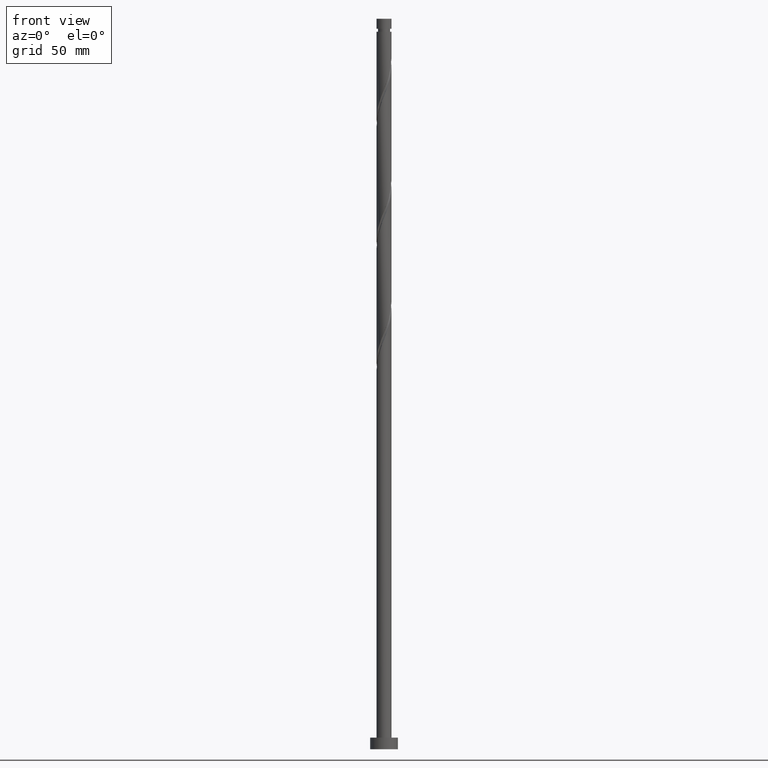
[diagram: clean part render]
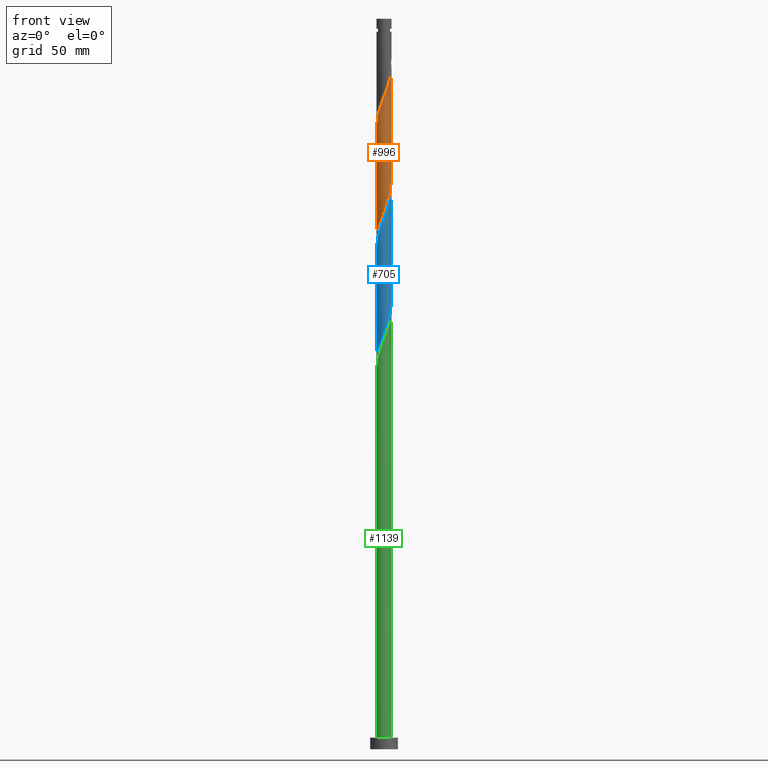
[diagram: same view with three faces highlighted in distinct colors, each labeled with its STEP entity id]
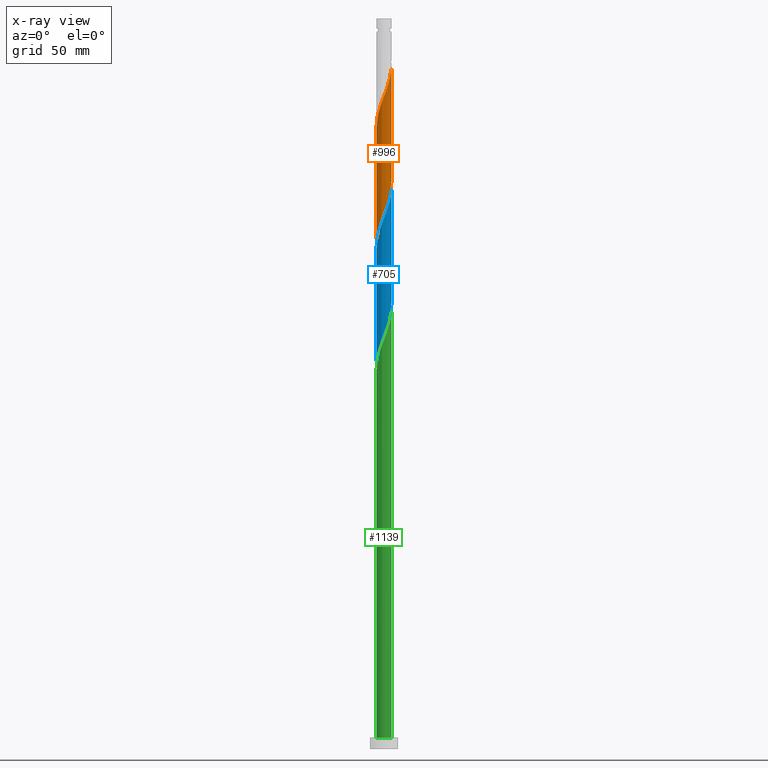
[diagram: x-ray of the same camera — body ghosted, the three highlighted faces saturated]
A machine part, front view with three faces highlighted in distinct colors.
The next image is the same camera in x-ray (body ghosted, the three faces saturated) — at least one of them is partly hidden behind the body in this view.
Their STEP definitions:

[orange] entity #996 — the highlighted cylindrical surface (edge-blend (fillet) strip) has radius 3.25 mm, axis along (-0, -0, -1).
#10 = EDGE_CURVE ( 'NONE', #267, #1795, #1080, .T. ) ;
#96 = CARTESIAN_POINT ( 'NONE',  ( -3.112129696193390860, -1.005605147701160273, 270.9820365143565368 ) ) ;
#104 = CARTESIAN_POINT ( 'NONE',  ( -2.588975079037776794, -1.964613967201029432, 273.7945365143565368 ) ) ;
#111 = CARTESIAN_POINT ( 'NONE',  ( -2.726594891042975366, -1.806176419719337067, 224.1070365143564800 ) ) ;
#122 = AXIS2_PLACEMENT_3D ( 'NONE', #591, #1572, #1292 ) ;
#125 = CARTESIAN_POINT ( 'NONE',  ( 2.367616247584412914, -2.256321400684336176, 239.1070365143564800 ) ) ;
#158 = CARTESIAN_POINT ( 'NONE',  ( 1.480171891976476362, -2.893370209669474669, 236.2945365143565368 ) ) ;
#193 = CARTESIAN_POINT ( 'NONE',  ( 3.250000000000000000, -3.082172232195127882E-15, 245.4690535922625543 ) ) ;
#267 = VERTEX_POINT ( 'NONE', #779 ) ;
#268 = CARTESIAN_POINT ( 'NONE',  ( 3.112129696193387751, -1.005605147701160051, 242.8570365143565652 ) ) ;
#288 = CARTESIAN_POINT ( 'NONE',  ( 2.961231803342259994, -1.339255840709440148, 241.9195365143564516 ) ) ;
#380 = CARTESIAN_POINT ( 'NONE',  ( -1.480171891976478582, -2.893370209669476889, 277.5445365143565937 ) ) ;
#387 = CARTESIAN_POINT ( 'NONE',  ( 1.672906533717721134, -2.810333910491136233, 285.9820365143565937 ) ) ;
#408 = CARTESIAN_POINT ( 'NONE',  ( 3.250000000000005329, -0.03910691579076755464, 294.5196567482252590 ) ) ;
#417 = CARTESIAN_POINT ( 'NONE',  ( -2.491458145863655105, -2.086896333651874436, 225.0445365143564800 ) ) ;
#422 = CARTESIAN_POINT ( 'NONE',  ( 3.060145528295977524, -1.154167364233618542, 291.6070365143566505 ) ) ;
#428 = CARTESIAN_POINT ( 'NONE',  ( 1.806176419719336845, -2.726594891042975366, 237.2320365143565368 ) ) ;
#447 = FACE_OUTER_BOUND ( 'NONE', #1575, .T. ) ;
#547 = CARTESIAN_POINT ( 'NONE',  ( 2.256321400684337952, -2.367616247584416467, 287.8570365143566505 ) ) ;
#566 = CARTESIAN_POINT ( 'NONE',  ( -1.806176419719339732, -2.726594891042978475, 276.6070365143564231 ) ) ;
#576 = CARTESIAN_POINT ( 'NONE',  ( -1.154167364233618542, -3.060145528295977524, 278.4820365143565937 ) ) ;
#581 = CARTESIAN_POINT ( 'NONE',  ( -1.964613967201027434, -2.588975079037771909, 226.9195365143564800 ) ) ;
#587 = ORIENTED_EDGE ( 'NONE', *, *, #10, .F. ) ;
#588 = CARTESIAN_POINT ( 'NONE',  ( -2.256321400684336176, -2.367616247584412914, 225.9820365143565084 ) ) ;
#591 = CARTESIAN_POINT ( 'NONE',  ( 0.000000000000000000, 0.000000000000000000, 315.0000000000000000 ) ) ;
#601 = CARTESIAN_POINT ( 'NONE',  ( -0.6467418341193061915, -3.185000000000000053, 230.6695365143564800 ) ) ;
#607 = EDGE_CURVE ( 'NONE', #670, #846, #1813, .T. ) ;
#670 = VERTEX_POINT ( 'NONE', #193 ) ;
#677 = CARTESIAN_POINT ( 'NONE',  ( -2.810333910491136233, -1.672906533717721134, 272.8570365143564800 ) ) ;
#688 = CARTESIAN_POINT ( 'NONE',  ( 1.005605147701160051, -3.112129696193390860, 284.1070365143565368 ) ) ;
#693 = EDGE_CURVE ( 'NONE', #267, #846, #1370, .T. ) ;
#697 = CARTESIAN_POINT ( 'NONE',  ( -0.07820250859228403129, -3.249058997255960257, 281.2945365143564231 ) ) ;
#706 = CARTESIAN_POINT ( 'NONE',  ( -3.250000000000006217, -0.3266372899592375201, 269.2082905154140349 ) ) ;
#724 = CARTESIAN_POINT ( 'NONE',  ( -1.339255840709440148, -2.961231803342259994, 228.7945365143565084 ) ) ;
#732 = CARTESIAN_POINT ( 'NONE',  ( -2.893370209669474669, -1.480171891976476584, 223.1695365143564800 ) ) ;
#773 = ORIENTED_EDGE ( 'NONE', *, *, #693, .T. ) ;
#779 = CARTESIAN_POINT ( 'NONE',  ( -3.250000000000004441, -1.425411371305729052E-15, 268.3700194364503204 ) ) ;
#823 = CARTESIAN_POINT ( 'NONE',  ( -0.4442835377220198945, -3.240247690705303274, 280.3570365143564800 ) ) ;
#846 = VERTEX_POINT ( 'NONE', #1566 ) ;
#855 = CYLINDRICAL_SURFACE ( 'NONE', #122, 3.250000000000000444 ) ;
#858 = CARTESIAN_POINT ( 'NONE',  ( 0.07820250859228279616, -3.249058997255955372, 232.5445365143565084 ) ) ;
#875 = CARTESIAN_POINT ( 'NONE',  ( 1.154167364233615878, -3.060145528295974415, 235.3570365143564800 ) ) ;
#881 = CARTESIAN_POINT ( 'NONE',  ( 3.250000000000000444, -0.3266372899592472900, 244.6307825132989535 ) ) ;
#891 = CARTESIAN_POINT ( 'NONE',  ( 3.250000000000000000, -3.082172232195128276E-15, 245.4690535922625543 ) ) ;
#931 = CARTESIAN_POINT ( 'NONE',  ( -3.250000000000000444, 0.000000000000000000, 315.0000000000000000 ) ) ;
#974 = CARTESIAN_POINT ( 'NONE',  ( 3.150196609500639955, -0.7992254509778191629, 292.5445365143564800 ) ) ;
#978 = DIRECTION ( 'NONE',  ( -0.000000000000000000, -0.000000000000000000, -1.000000000000000000 ) ) ;
#991 = ORIENTED_EDGE ( 'NONE', *, *, #1794, .F. ) ;
#996 = ADVANCED_FACE ( 'NONE', ( #447 ), #855, .T. ) ;
#998 = CARTESIAN_POINT ( 'NONE',  ( -1.005605147701159829, -3.112129696193387751, 229.7320365143564800 ) ) ;
#1000 = CARTESIAN_POINT ( 'NONE',  ( 3.240247690705302830, -0.4442835377220201720, 293.4820365143564800 ) ) ;
#1015 = CARTESIAN_POINT ( 'NONE',  ( -0.2878785205374524980, -3.257870303806612799, 231.6070365143564800 ) ) ;
#1080 =( BOUNDED_CURVE ( )  B_SPLINE_CURVE ( 2, ( #1257, #706, #1111, #96, #1418, #677, #104, #1297, #1885, #566, #380, #576, #1151, #823, #697, #1552, #1569, #688, #1264, #387, #1856, #547, #1121, #1708, #1733, #422, #974, #1000, #1279, #408, #1868 ),
 .UNSPECIFIED., .F., .T. ) 
 B_SPLINE_CURVE_WITH_KNOTS ( ( 3, 2, 2, 2, 2, 2, 2, 2, 2, 2, 2, 2, 2, 2, 2, 3 ),
 ( 0.5545303401299218615, 0.5625000000000000000, 0.5714285714285713969, 0.5803571428571427937, 0.5892857142857143016, 0.5982142857142856984, 0.6071428571428572063, 0.6160714285714286031, 0.6250000000000000000, 0.6339285714285713969, 0.6428571428571427937, 0.6517857142857143016, 0.6607142857142856984, 0.6696428571428572063, 0.6785714285714286031, 0.6795303401299220836 ),
 .UNSPECIFIED. ) 
 CURVE ( )  GEOMETRIC_REPRESENTATION_ITEM ( )  RATIONAL_B_SPLINE_CURVE ( ( 0.9079949616362157361, 0.9039886423360782297, 0.9090909090909453649, 0.9033747362666201264, 0.9090909090909453649, 0.9033747362666201264, 0.9090909090909453649, 0.9033747362666201264, 0.9090909090909453649, 0.9033747362666201264, 0.9090909090909453649, 0.9033747362666201264, 0.9090909090909453649, 0.9033747362666201264, 0.9090909090909453649, 0.9033747362666201264, 0.9090909090909453649, 0.9033747362666201264, 0.9090909090909453649, 0.9033747362666201264, 0.9090909090909453649, 0.9033747362666201264, 0.9090909090909453649, 0.9033747362666201264, 0.9090909090909453649, 0.9033747362666201264, 0.9090909090909453649, 0.9033747362666201264, 0.9090909090909453649, 0.9084770030214870395, 0.9079949616362152920 ) ) 
 REPRESENTATION_ITEM ( '' )  );
#1111 = CARTESIAN_POINT ( 'NONE',  ( -3.185000000000003606, -0.6467418341193059694, 270.0445365143564231 ) ) ;
#1116 = VECTOR ( 'NONE', #1342, 1000.000000000000000 ) ;
#1121 = CARTESIAN_POINT ( 'NONE',  ( 2.491458145863657325, -2.086896333651878432, 288.7945365143564800 ) ) ;
#1146 = CARTESIAN_POINT ( 'NONE',  ( -1.672906533717720245, -2.810333910491133125, 227.8570365143565084 ) ) ;
#1151 = CARTESIAN_POINT ( 'NONE',  ( -0.7992254509778189409, -3.150196609500639955, 279.4195365143564800 ) ) ;
#1169 = CARTESIAN_POINT ( 'NONE',  ( -3.249999999999999556, -0.03910691579077092001, 219.3194162804875873 ) ) ;
#1176 = CARTESIAN_POINT ( 'NONE',  ( 0.7992254509778171645, -3.150196609500636846, 234.4195365143564516 ) ) ;
#1184 = CARTESIAN_POINT ( 'NONE',  ( -3.250000000000000444, -6.455397048060013221E-15, 219.2190535922625827 ) ) ;
#1257 = CARTESIAN_POINT ( 'NONE',  ( -3.250000000000004441, -1.425411371305729052E-15, 268.3700194364503204 ) ) ;
#1264 = CARTESIAN_POINT ( 'NONE',  ( 1.339255840709440593, -2.961231803342264435, 285.0445365143565368 ) ) ;
#1279 = CARTESIAN_POINT ( 'NONE',  ( 3.249058997255960257, -0.07820250859228422557, 294.4195365143564231 ) ) ;
#1290 = CARTESIAN_POINT ( 'NONE',  ( 3.250000000000004441, 1.014952599463765272E-15, 294.6200194364503204 ) ) ;
#1292 = DIRECTION ( 'NONE',  ( -1.000000000000000000, 0.000000000000000000, 0.000000000000000000 ) ) ;
#1297 = CARTESIAN_POINT ( 'NONE',  ( -2.367616247584416467, -2.256321400684337952, 274.7320365143565368 ) ) ;
#1323 = CARTESIAN_POINT ( 'NONE',  ( -3.150196609500636846, -0.7992254509778171645, 221.2945365143564800 ) ) ;
#1342 = DIRECTION ( 'NONE',  ( -0.000000000000000000, -0.000000000000000000, -1.000000000000000000 ) ) ;
#1370 = LINE ( 'NONE', #931, #1116 ) ;
#1395 = VECTOR ( 'NONE', #978, 1000.000000000000000 ) ;
#1418 = CARTESIAN_POINT ( 'NONE',  ( -2.961231803342264435, -1.339255840709440593, 271.9195365143565368 ) ) ;
#1444 = CARTESIAN_POINT ( 'NONE',  ( -3.249058997255955372, -0.07820250859228301821, 219.4195365143565084 ) ) ;
#1461 = CARTESIAN_POINT ( 'NONE',  ( 0.4442835377220181181, -3.240247690705299277, 233.4820365143564800 ) ) ;
#1468 = CARTESIAN_POINT ( 'NONE',  ( 3.185000000000000053, -0.6467418341193064135, 243.7945365143564800 ) ) ;
#1475 = CARTESIAN_POINT ( 'NONE',  ( 2.086896333651873991, -2.491458145863655549, 238.1695365143564800 ) ) ;
#1552 = CARTESIAN_POINT ( 'NONE',  ( 0.2878785205374517209, -3.257870303806616352, 282.2320365143565368 ) ) ;
#1566 = CARTESIAN_POINT ( 'NONE',  ( -3.250000000000000444, -6.455397048060013221E-15, 219.2190535922625827 ) ) ;
#1569 = CARTESIAN_POINT ( 'NONE',  ( 0.6467418341193057474, -3.185000000000003606, 283.1695365143564231 ) ) ;
#1572 = DIRECTION ( 'NONE',  ( -0.000000000000000000, -0.000000000000000000, -1.000000000000000000 ) ) ;
#1575 = EDGE_LOOP ( 'NONE', ( #991, #587, #773, #1597 ) ) ;
#1590 = CARTESIAN_POINT ( 'NONE',  ( -3.060145528295974415, -1.154167364233615878, 222.2320365143565368 ) ) ;
#1597 = ORIENTED_EDGE ( 'NONE', *, *, #607, .F. ) ;
#1609 = CARTESIAN_POINT ( 'NONE',  ( -3.240247690705299277, -0.4442835377220182846, 220.3570365143565368 ) ) ;
#1708 = CARTESIAN_POINT ( 'NONE',  ( 2.726594891042978475, -1.806176419719339732, 289.7320365143565368 ) ) ;
#1713 = CARTESIAN_POINT ( 'NONE',  ( 3.250000000000000444, 3.980102097228898231E-16, 315.0000000000000000 ) ) ;
#1729 = CARTESIAN_POINT ( 'NONE',  ( 2.810333910491132237, -1.672906533717720245, 240.9820365143565084 ) ) ;
#1733 = CARTESIAN_POINT ( 'NONE',  ( 2.893370209669477333, -1.480171891976479026, 290.6695365143564800 ) ) ;
#1754 = CARTESIAN_POINT ( 'NONE',  ( 2.588975079037771909, -1.964613967201028100, 240.0445365143564800 ) ) ;
#1794 = EDGE_CURVE ( 'NONE', #1795, #670, #1891, .T. ) ;
#1795 = VERTEX_POINT ( 'NONE', #1290 ) ;
#1813 =( BOUNDED_CURVE ( )  B_SPLINE_CURVE ( 2, ( #891, #881, #1468, #268, #288, #1729, #1754, #125, #1475, #428, #158, #875, #1176, #1461, #858, #1015, #601, #998, #724, #1146, #581, #588, #417, #111, #732, #1590, #1323, #1609, #1444, #1169, #1184 ),
 .UNSPECIFIED., .F., .T. ) 
 B_SPLINE_CURVE_WITH_KNOTS ( ( 3, 2, 2, 2, 2, 2, 2, 2, 2, 2, 2, 2, 2, 2, 2, 3 ),
 ( 0.5545303401299220836, 0.5625000000000000000, 0.5714285714285713969, 0.5803571428571429047, 0.5892857142857143016, 0.5982142857142856984, 0.6071428571428570953, 0.6160714285714286031, 0.6250000000000000000, 0.6339285714285713969, 0.6428571428571429047, 0.6517857142857143016, 0.6607142857142856984, 0.6696428571428570953, 0.6785714285714286031, 0.6795303401299219725 ),
 .UNSPECIFIED. ) 
 CURVE ( )  GEOMETRIC_REPRESENTATION_ITEM ( )  RATIONAL_B_SPLINE_CURVE ( ( 0.9079949616362104070, 0.9039886423360735668, 0.9090909090909403689, 0.9033747362666152414, 0.9090909090909403689, 0.9033747362666152414, 0.9090909090909403689, 0.9033747362666152414, 0.9090909090909403689, 0.9033747362666152414, 0.9090909090909403689, 0.9033747362666152414, 0.9090909090909403689, 0.9033747362666152414, 0.9090909090909403689, 0.9033747362666152414, 0.9090909090909403689, 0.9033747362666152414, 0.9090909090909403689, 0.9033747362666152414, 0.9090909090909403689, 0.9033747362666152414, 0.9090909090909403689, 0.9033747362666152414, 0.9090909090909403689, 0.9033747362666152414, 0.9090909090909403689, 0.9033747362666152414, 0.9090909090909403689, 0.9084770030214821546, 0.9079949616362105180 ) ) 
 REPRESENTATION_ITEM ( '' )  );
#1856 = CARTESIAN_POINT ( 'NONE',  ( 1.964613967201029432, -2.588975079037776794, 286.9195365143564800 ) ) ;
#1868 = CARTESIAN_POINT ( 'NONE',  ( 3.250000000000004441, 1.014952599463765272E-15, 294.6200194364503204 ) ) ;
#1885 = CARTESIAN_POINT ( 'NONE',  ( -2.086896333651878432, -2.491458145863657325, 275.6695365143564231 ) ) ;
#1891 = LINE ( 'NONE', #1713, #1395 ) ;

[blue] entity #705 — the highlighted cylindrical surface (edge-blend (fillet) strip) has radius 3.25 mm, axis along (-0, -0, -1).
#15 = CARTESIAN_POINT ( 'NONE',  ( 0.000000000000000000, 0.000000000000000000, 315.0000000000000000 ) ) ;
#60 = CARTESIAN_POINT ( 'NONE',  ( -3.112129696193390860, -1.005605147701160273, 218.4820365143565084 ) ) ;
#69 = EDGE_CURVE ( 'NONE', #617, #1057, #356, .T. ) ;
#97 = CARTESIAN_POINT ( 'NONE',  ( 2.893370209669477333, -1.480171891976479026, 238.1695365143565368 ) ) ;
#102 = CARTESIAN_POINT ( 'NONE',  ( 1.154167364233615878, -3.060145528295974415, 182.8570365143565368 ) ) ;
#153 =( BOUNDED_CURVE ( )  B_SPLINE_CURVE ( 2, ( #1255, #1134, #542, #1115, #1567, #248, #1720, #404, #257, #847, #1437, #102, #702, #1836, #523, #1097, #367, #222, #451, #1313, #594, #303, #1294, #1007, #740, #1026, #572, #1327, #1615, #1303, #1452 ),
 .UNSPECIFIED., .F., .T. ) 
 B_SPLINE_CURVE_WITH_KNOTS ( ( 3, 2, 2, 2, 2, 2, 2, 2, 2, 2, 2, 2, 2, 2, 2, 3 ),
 ( 0.8045303401299219725, 0.8125000000000000000, 0.8214285714285713969, 0.8303571428571429047, 0.8392857142857143016, 0.8482142857142856984, 0.8571428571428570953, 0.8660714285714286031, 0.8750000000000000000, 0.8839285714285713969, 0.8928571428571429047, 0.9017857142857143016, 0.9107142857142856984, 0.9196428571428570953, 0.9285714285714286031, 0.9295303401299220836 ),
 .UNSPECIFIED. ) 
 CURVE ( )  GEOMETRIC_REPRESENTATION_ITEM ( )  RATIONAL_B_SPLINE_CURVE ( ( 0.9079949616362105180, 0.9039886423360734558, 0.9090909090909403689, 0.9033747362666152414, 0.9090909090909403689, 0.9033747362666152414, 0.9090909090909403689, 0.9033747362666152414, 0.9090909090909403689, 0.9033747362666152414, 0.9090909090909403689, 0.9033747362666152414, 0.9090909090909403689, 0.9033747362666152414, 0.9090909090909403689, 0.9033747362666152414, 0.9090909090909403689, 0.9033747362666152414, 0.9090909090909403689, 0.9033747362666152414, 0.9090909090909403689, 0.9033747362666152414, 0.9090909090909403689, 0.9033747362666152414, 0.9090909090909403689, 0.9033747362666152414, 0.9090909090909403689, 0.9033747362666152414, 0.9090909090909403689, 0.9084770030214821546, 0.9079949616362104070 ) ) 
 REPRESENTATION_ITEM ( '' )  );
#174 = CARTESIAN_POINT ( 'NONE',  ( 2.256321400684337952, -2.367616247584416467, 235.3570365143564800 ) ) ;
#179 = CARTESIAN_POINT ( 'NONE',  ( -3.250000000000000000, -1.552280446238707703E-14, 166.7190535922625543 ) ) ;
#210 = CARTESIAN_POINT ( 'NONE',  ( -2.810333910491136233, -1.672906533717721134, 220.3570365143565084 ) ) ;
#213 = CARTESIAN_POINT ( 'NONE',  ( 3.250000000000000444, 3.980102097228898231E-16, 315.0000000000000000 ) ) ;
#222 = CARTESIAN_POINT ( 'NONE',  ( -1.005605147701159829, -3.112129696193387751, 177.2320365143564800 ) ) ;
#248 = CARTESIAN_POINT ( 'NONE',  ( 2.810333910491132237, -1.672906533717720245, 188.4820365143565368 ) ) ;
#257 = CARTESIAN_POINT ( 'NONE',  ( 2.086896333651873991, -2.491458145863655549, 185.6695365143565084 ) ) ;
#273 = ORIENTED_EDGE ( 'NONE', *, *, #1423, .F. ) ;
#282 = CARTESIAN_POINT ( 'NONE',  ( 3.250000000000004441, 1.507503125674122439E-15, 242.1200194364504625 ) ) ;
#297 = ORIENTED_EDGE ( 'NONE', *, *, #578, .F. ) ;
#303 = CARTESIAN_POINT ( 'NONE',  ( -2.256321400684336176, -2.367616247584412914, 173.4820365143564800 ) ) ;
#350 = CARTESIAN_POINT ( 'NONE',  ( 3.250000000000000000, -3.082172232195127882E-15, 192.9690535922625543 ) ) ;
#356 = LINE ( 'NONE', #1675, #938 ) ;
#358 = CARTESIAN_POINT ( 'NONE',  ( -3.250000000000004885, -1.925424784276849200E-15, 215.8700194364505194 ) ) ;
#367 = CARTESIAN_POINT ( 'NONE',  ( -0.6467418341193061915, -3.185000000000000053, 178.1695365143564800 ) ) ;
#371 = CARTESIAN_POINT ( 'NONE',  ( 0.2878785205374517209, -3.257870303806616352, 229.7320365143565084 ) ) ;
#404 = CARTESIAN_POINT ( 'NONE',  ( 2.367616247584412914, -2.256321400684336176, 186.6070365143564516 ) ) ;
#451 = CARTESIAN_POINT ( 'NONE',  ( -1.339255840709440148, -2.961231803342259994, 176.2945365143565368 ) ) ;
#498 = EDGE_CURVE ( 'NONE', #1329, #723, #1236, .T. ) ;
#523 = CARTESIAN_POINT ( 'NONE',  ( 0.07820250859228279616, -3.249058997255955372, 180.0445365143565652 ) ) ;
#539 = CARTESIAN_POINT ( 'NONE',  ( -1.154167364233618542, -3.060145528295977524, 225.9820365143564800 ) ) ;
#542 = CARTESIAN_POINT ( 'NONE',  ( 3.185000000000000053, -0.6467418341193064135, 191.2945365143564800 ) ) ;
#548 = CARTESIAN_POINT ( 'NONE',  ( -3.250000000000002665, -0.3266372899592531742, 216.7082905154140349 ) ) ;
#572 = CARTESIAN_POINT ( 'NONE',  ( -3.150196609500636846, -0.7992254509778171645, 168.7945365143564516 ) ) ;
#578 = EDGE_CURVE ( 'NONE', #723, #1057, #153, .T. ) ;
#584 = CARTESIAN_POINT ( 'NONE',  ( 3.249058997255960257, -0.07820250859228422557, 241.9195365143564516 ) ) ;
#594 = CARTESIAN_POINT ( 'NONE',  ( -1.964613967201027434, -2.588975079037771909, 174.4195365143564800 ) ) ;
#613 = CARTESIAN_POINT ( 'NONE',  ( 3.240247690705302830, -0.4442835377220201720, 240.9820365143565368 ) ) ;
#617 = VERTEX_POINT ( 'NONE', #714 ) ;
#639 = FACE_OUTER_BOUND ( 'NONE', #862, .T. ) ;
#664 = CARTESIAN_POINT ( 'NONE',  ( -1.480171891976478582, -2.893370209669476889, 225.0445365143564516 ) ) ;
#702 = CARTESIAN_POINT ( 'NONE',  ( 0.7992254509778171645, -3.150196609500636846, 181.9195365143565084 ) ) ;
#705 = ADVANCED_FACE ( 'NONE', ( #639 ), #1226, .T. ) ;
#714 = CARTESIAN_POINT ( 'NONE',  ( -3.250000000000004885, -1.925424784276849200E-15, 215.8700194364505194 ) ) ;
#723 = VERTEX_POINT ( 'NONE', #350 ) ;
#740 = CARTESIAN_POINT ( 'NONE',  ( -2.893370209669474669, -1.480171891976476584, 170.6695365143564800 ) ) ;
#801 = CARTESIAN_POINT ( 'NONE',  ( -0.4442835377220198945, -3.240247690705303274, 227.8570365143565652 ) ) ;
#833 = CARTESIAN_POINT ( 'NONE',  ( -0.7992254509778189409, -3.150196609500639955, 226.9195365143565368 ) ) ;
#847 = CARTESIAN_POINT ( 'NONE',  ( 1.806176419719336845, -2.726594891042975366, 184.7320365143564516 ) ) ;
#853 = CARTESIAN_POINT ( 'NONE',  ( 2.726594891042978475, -1.806176419719339732, 237.2320365143565368 ) ) ;
#862 = EDGE_LOOP ( 'NONE', ( #1876, #273, #1407, #297 ) ) ;
#906 = CARTESIAN_POINT ( 'NONE',  ( 1.672906533717721134, -2.810333910491136233, 233.4820365143565368 ) ) ;
#938 = VECTOR ( 'NONE', #1099, 1000.000000000000000 ) ;
#948 = CARTESIAN_POINT ( 'NONE',  ( -2.588975079037776794, -1.964613967201029432, 221.2945365143564800 ) ) ;
#1007 = CARTESIAN_POINT ( 'NONE',  ( -2.726594891042975366, -1.806176419719337067, 171.6070365143564800 ) ) ;
#1026 = CARTESIAN_POINT ( 'NONE',  ( -3.060145528295974415, -1.154167364233615878, 169.7320365143565368 ) ) ;
#1057 = VERTEX_POINT ( 'NONE', #179 ) ;
#1095 = CARTESIAN_POINT ( 'NONE',  ( -2.961231803342264435, -1.339255840709440593, 219.4195365143564800 ) ) ;
#1097 = CARTESIAN_POINT ( 'NONE',  ( -0.2878785205374524980, -3.257870303806612799, 179.1070365143565368 ) ) ;
#1099 = DIRECTION ( 'NONE',  ( -0.000000000000000000, -0.000000000000000000, -1.000000000000000000 ) ) ;
#1115 = CARTESIAN_POINT ( 'NONE',  ( 3.112129696193387751, -1.005605147701160051, 190.3570365143564231 ) ) ;
#1122 = CARTESIAN_POINT ( 'NONE',  ( -3.185000000000003606, -0.6467418341193059694, 217.5445365143564800 ) ) ;
#1134 = CARTESIAN_POINT ( 'NONE',  ( 3.250000000000001332, -0.3266372899592427936, 192.1307825132989535 ) ) ;
#1138 = CARTESIAN_POINT ( 'NONE',  ( 1.339255840709440593, -2.961231803342264435, 232.5445365143564800 ) ) ;
#1140 =( BOUNDED_CURVE ( )  B_SPLINE_CURVE ( 2, ( #358, #548, #1122, #60, #1095, #210, #948, #1562, #1536, #1391, #664, #539, #833, #801, #1689, #371, #1699, #1747, #1138, #906, #1195, #174, #1306, #853, #97, #1603, #1907, #613, #584, #1497, #282 ),
 .UNSPECIFIED., .F., .T. ) 
 B_SPLINE_CURVE_WITH_KNOTS ( ( 3, 2, 2, 2, 2, 2, 2, 2, 2, 2, 2, 2, 2, 2, 2, 3 ),
 ( 0.3045303401299222501, 0.3125000000000000000, 0.3214285714285713969, 0.3303571428571429047, 0.3392857142857143016, 0.3482142857142856984, 0.3571428571428570953, 0.3660714285714286031, 0.3750000000000000000, 0.3839285714285713969, 0.3928571428571429047, 0.4017857142857143016, 0.4107142857142856984, 0.4196428571428570953, 0.4285714285714286031, 0.4295303401299219725 ),
 .UNSPECIFIED. ) 
 CURVE ( )  GEOMETRIC_REPRESENTATION_ITEM ( )  RATIONAL_B_SPLINE_CURVE ( ( 0.9079949616362152920, 0.9039886423360785628, 0.9090909090909453649, 0.9033747362666201264, 0.9090909090909453649, 0.9033747362666201264, 0.9090909090909453649, 0.9033747362666201264, 0.9090909090909453649, 0.9033747362666201264, 0.9090909090909453649, 0.9033747362666201264, 0.9090909090909453649, 0.9033747362666201264, 0.9090909090909453649, 0.9033747362666201264, 0.9090909090909453649, 0.9033747362666201264, 0.9090909090909453649, 0.9033747362666201264, 0.9090909090909453649, 0.9033747362666201264, 0.9090909090909453649, 0.9033747362666201264, 0.9090909090909453649, 0.9033747362666201264, 0.9090909090909453649, 0.9033747362666201264, 0.9090909090909453649, 0.9084770030214871506, 0.9079949616362155140 ) ) 
 REPRESENTATION_ITEM ( '' )  );
#1192 = DIRECTION ( 'NONE',  ( -1.000000000000000000, 0.000000000000000000, 0.000000000000000000 ) ) ;
#1195 = CARTESIAN_POINT ( 'NONE',  ( 1.964613967201029432, -2.588975079037776794, 234.4195365143564800 ) ) ;
#1226 = CYLINDRICAL_SURFACE ( 'NONE', #1860, 3.250000000000000444 ) ;
#1236 = LINE ( 'NONE', #213, #1676 ) ;
#1255 = CARTESIAN_POINT ( 'NONE',  ( 3.250000000000000444, -3.082172232195127093E-15, 192.9690535922625259 ) ) ;
#1294 = CARTESIAN_POINT ( 'NONE',  ( -2.491458145863655105, -2.086896333651874436, 172.5445365143565084 ) ) ;
#1303 = CARTESIAN_POINT ( 'NONE',  ( -3.249999999999999556, -0.03910691579076638891, 166.8194162804876441 ) ) ;
#1306 = CARTESIAN_POINT ( 'NONE',  ( 2.491458145863657325, -2.086896333651878432, 236.2945365143564516 ) ) ;
#1313 = CARTESIAN_POINT ( 'NONE',  ( -1.672906533717720245, -2.810333910491133125, 175.3570365143565368 ) ) ;
#1327 = CARTESIAN_POINT ( 'NONE',  ( -3.240247690705299277, -0.4442835377220182846, 167.8570365143565084 ) ) ;
#1329 = VERTEX_POINT ( 'NONE', #1832 ) ;
#1355 = DIRECTION ( 'NONE',  ( -0.000000000000000000, -0.000000000000000000, -1.000000000000000000 ) ) ;
#1359 = DIRECTION ( 'NONE',  ( -0.000000000000000000, -0.000000000000000000, -1.000000000000000000 ) ) ;
#1391 = CARTESIAN_POINT ( 'NONE',  ( -1.806176419719339732, -2.726594891042978475, 224.1070365143564800 ) ) ;
#1407 = ORIENTED_EDGE ( 'NONE', *, *, #69, .T. ) ;
#1423 = EDGE_CURVE ( 'NONE', #617, #1329, #1140, .T. ) ;
#1437 = CARTESIAN_POINT ( 'NONE',  ( 1.480171891976476362, -2.893370209669474669, 183.7945365143565084 ) ) ;
#1452 = CARTESIAN_POINT ( 'NONE',  ( -3.250000000000000000, -1.552280446238707703E-14, 166.7190535922625543 ) ) ;
#1497 = CARTESIAN_POINT ( 'NONE',  ( 3.250000000000004441, -0.03910691579077207186, 242.0196567482253442 ) ) ;
#1536 = CARTESIAN_POINT ( 'NONE',  ( -2.086896333651878432, -2.491458145863657325, 223.1695365143564800 ) ) ;
#1562 = CARTESIAN_POINT ( 'NONE',  ( -2.367616247584416467, -2.256321400684337952, 222.2320365143565937 ) ) ;
#1567 = CARTESIAN_POINT ( 'NONE',  ( 2.961231803342259994, -1.339255840709440148, 189.4195365143564800 ) ) ;
#1603 = CARTESIAN_POINT ( 'NONE',  ( 3.060145528295977524, -1.154167364233618542, 239.1070365143565084 ) ) ;
#1615 = CARTESIAN_POINT ( 'NONE',  ( -3.249058997255955372, -0.07820250859228301821, 166.9195365143564800 ) ) ;
#1675 = CARTESIAN_POINT ( 'NONE',  ( -3.250000000000000444, 0.000000000000000000, 315.0000000000000000 ) ) ;
#1676 = VECTOR ( 'NONE', #1359, 1000.000000000000000 ) ;
#1689 = CARTESIAN_POINT ( 'NONE',  ( -0.07820250859228403129, -3.249058997255960257, 228.7945365143564800 ) ) ;
#1699 = CARTESIAN_POINT ( 'NONE',  ( 0.6467418341193057474, -3.185000000000003606, 230.6695365143564800 ) ) ;
#1720 = CARTESIAN_POINT ( 'NONE',  ( 2.588975079037771909, -1.964613967201028100, 187.5445365143564231 ) ) ;
#1747 = CARTESIAN_POINT ( 'NONE',  ( 1.005605147701160051, -3.112129696193390860, 231.6070365143565652 ) ) ;
#1832 = CARTESIAN_POINT ( 'NONE',  ( 3.250000000000004885, 1.507503125674122439E-15, 242.1200194364504625 ) ) ;
#1836 = CARTESIAN_POINT ( 'NONE',  ( 0.4442835377220181181, -3.240247690705299277, 180.9820365143565368 ) ) ;
#1860 = AXIS2_PLACEMENT_3D ( 'NONE', #15, #1355, #1192 ) ;
#1876 = ORIENTED_EDGE ( 'NONE', *, *, #498, .F. ) ;
#1907 = CARTESIAN_POINT ( 'NONE',  ( 3.150196609500639955, -0.7992254509778191629, 240.0445365143564231 ) ) ;

[green] entity #1139 — the highlighted cylindrical surface (edge-blend (fillet) strip) has radius 3.25 mm, axis along (-0, -0, -1).
#3 = ORIENTED_EDGE ( 'NONE', *, *, #1915, .T. ) ;
#52 = CARTESIAN_POINT ( 'NONE',  ( -2.367616247584416467, -2.256321400684337952, 169.7320365143565368 ) ) ;
#85 = CARTESIAN_POINT ( 'NONE',  ( 2.491458145863657325, -2.086896333651878432, 183.7945365143564800 ) ) ;
#95 = AXIS2_PLACEMENT_3D ( 'NONE', #1812, #988, #668 ) ;
#162 = EDGE_CURVE ( 'NONE', #311, #1448, #1530, .T. ) ;
#214 = CARTESIAN_POINT ( 'NONE',  ( -3.250000000000000444, 0.000000000000000000, 5.000000000000000000 ) ) ;
#226 = CARTESIAN_POINT ( 'NONE',  ( -1.806176419719339732, -2.726594891042978475, 171.6070365143564800 ) ) ;
#233 = CARTESIAN_POINT ( 'NONE',  ( 1.964613967201029432, -2.588975079037776794, 181.9195365143564800 ) ) ;
#239 =( BOUNDED_CURVE ( )  B_SPLINE_CURVE ( 2, ( #645, #1199, #1792, #1823, #954, #966, #1265, #52, #245, #226, #381, #1684, #1419, #1709, #1839, #388, #678, #654, #811, #1553, #233, #1112, #85, #824, #1408, #1383, #1401, #936, #1542, #1251, #689 ),
 .UNSPECIFIED., .F., .T. ) 
 B_SPLINE_CURVE_WITH_KNOTS ( ( 3, 2, 2, 2, 2, 2, 2, 2, 2, 2, 2, 2, 2, 2, 2, 3 ),
 ( 0.05453034012992197255, 0.06250000000000000000, 0.07142857142857139685, 0.08035714285714290472, 0.08928571428571430157, 0.09821428571428569843, 0.1071428571428570953, 0.1160714285714286031, 0.1250000000000000000, 0.1339285714285713969, 0.1428571428571429047, 0.1517857142857143016, 0.1607142857142856984, 0.1696428571428570953, 0.1785714285714286031, 0.1795303401299220558 ),
 .UNSPECIFIED. ) 
 CURVE ( )  GEOMETRIC_REPRESENTATION_ITEM ( )  RATIONAL_B_SPLINE_CURVE ( ( 0.9079949616362155140, 0.9039886423360783407, 0.9090909090909453649, 0.9033747362666201264, 0.9090909090909453649, 0.9033747362666201264, 0.9090909090909453649, 0.9033747362666201264, 0.9090909090909453649, 0.9033747362666201264, 0.9090909090909453649, 0.9033747362666201264, 0.9090909090909453649, 0.9033747362666201264, 0.9090909090909453649, 0.9033747362666201264, 0.9090909090909453649, 0.9033747362666201264, 0.9090909090909453649, 0.9033747362666201264, 0.9090909090909453649, 0.9033747362666201264, 0.9090909090909453649, 0.9033747362666201264, 0.9090909090909453649, 0.9033747362666201264, 0.9090909090909453649, 0.9033747362666201264, 0.9090909090909453649, 0.9084770030214871506, 0.9079949616362155140 ) ) 
 REPRESENTATION_ITEM ( '' )  );
#245 = CARTESIAN_POINT ( 'NONE',  ( -2.086896333651878432, -2.491458145863657325, 170.6695365143565084 ) ) ;
#311 = VERTEX_POINT ( 'NONE', #1219 ) ;
#314 = EDGE_CURVE ( 'NONE', #1698, #1448, #1838, .T. ) ;
#381 = CARTESIAN_POINT ( 'NONE',  ( -1.480171891976478582, -2.893370209669476889, 172.5445365143564800 ) ) ;
#388 = CARTESIAN_POINT ( 'NONE',  ( 0.2878785205374517209, -3.257870303806616352, 177.2320365143565084 ) ) ;
#490 = DIRECTION ( 'NONE',  ( -1.000000000000000000, 0.000000000000000000, 0.000000000000000000 ) ) ;
#519 = VECTOR ( 'NONE', #1874, 1000.000000000000000 ) ;
#567 = CARTESIAN_POINT ( 'NONE',  ( 3.250000000000000444, 3.980102097228898231E-16, 5.000000000000000000 ) ) ;
#571 = ORIENTED_EDGE ( 'NONE', *, *, #162, .F. ) ;
#625 = DIRECTION ( 'NONE',  ( -0.000000000000000000, -0.000000000000000000, -1.000000000000000000 ) ) ;
#645 = CARTESIAN_POINT ( 'NONE',  ( -3.250000000000004441, -1.925424784276849200E-15, 163.3700194364504057 ) ) ;
#654 = CARTESIAN_POINT ( 'NONE',  ( 1.005605147701160051, -3.112129696193390860, 179.1070365143565368 ) ) ;
#668 = DIRECTION ( 'NONE',  ( 1.000000000000000000, 0.000000000000000000, 0.000000000000000000 ) ) ;
#678 = CARTESIAN_POINT ( 'NONE',  ( 0.6467418341193057474, -3.185000000000003606, 178.1695365143564231 ) ) ;
#689 = CARTESIAN_POINT ( 'NONE',  ( 3.250000000000004441, 1.507503125674122439E-15, 189.6200194364504625 ) ) ;
#694 = LINE ( 'NONE', #1894, #519 ) ;
#759 = VERTEX_POINT ( 'NONE', #1526 ) ;
#811 = CARTESIAN_POINT ( 'NONE',  ( 1.339255840709440593, -2.961231803342264435, 180.0445365143565084 ) ) ;
#824 = CARTESIAN_POINT ( 'NONE',  ( 2.726594891042978475, -1.806176419719339732, 184.7320365143565084 ) ) ;
#887 = CYLINDRICAL_SURFACE ( 'NONE', #1394, 3.250000000000000444 ) ;
#936 = CARTESIAN_POINT ( 'NONE',  ( 3.240247690705302830, -0.4442835377220201720, 188.4820365143565652 ) ) ;
#947 = CARTESIAN_POINT ( 'NONE',  ( 3.250000000000000444, 3.980102097228898231E-16, 315.0000000000000000 ) ) ;
#954 = CARTESIAN_POINT ( 'NONE',  ( -2.961231803342264435, -1.339255840709440593, 166.9195365143565084 ) ) ;
#966 = CARTESIAN_POINT ( 'NONE',  ( -2.810333910491136233, -1.672906533717721134, 167.8570365143564800 ) ) ;
#988 = DIRECTION ( 'NONE',  ( 0.000000000000000000, 0.000000000000000000, 1.000000000000000000 ) ) ;
#1092 = DIRECTION ( 'NONE',  ( -0.000000000000000000, -0.000000000000000000, -1.000000000000000000 ) ) ;
#1112 = CARTESIAN_POINT ( 'NONE',  ( 2.256321400684337952, -2.367616247584416467, 182.8570365143565084 ) ) ;
#1139 = ADVANCED_FACE ( 'NONE', ( #1644 ), #887, .T. ) ;
#1199 = CARTESIAN_POINT ( 'NONE',  ( -3.250000000000004885, -0.3266372899592420165, 164.2082905154140349 ) ) ;
#1211 = CARTESIAN_POINT ( 'NONE',  ( 0.000000000000000000, 0.000000000000000000, 315.0000000000000000 ) ) ;
#1219 = CARTESIAN_POINT ( 'NONE',  ( 3.250000000000004885, 1.507503125674122439E-15, 189.6200194364504625 ) ) ;
#1251 = CARTESIAN_POINT ( 'NONE',  ( 3.250000000000004441, -0.03910691579076868568, 189.5196567482253442 ) ) ;
#1265 = CARTESIAN_POINT ( 'NONE',  ( -2.588975079037776794, -1.964613967201029432, 168.7945365143565652 ) ) ;
#1309 = EDGE_CURVE ( 'NONE', #759, #311, #239, .T. ) ;
#1383 = CARTESIAN_POINT ( 'NONE',  ( 3.060145528295977524, -1.154167364233618542, 186.6070365143565084 ) ) ;
#1394 = AXIS2_PLACEMENT_3D ( 'NONE', #1211, #625, #490 ) ;
#1401 = CARTESIAN_POINT ( 'NONE',  ( 3.150196609500639955, -0.7992254509778191629, 187.5445365143565084 ) ) ;
#1408 = CARTESIAN_POINT ( 'NONE',  ( 2.893370209669477333, -1.480171891976479026, 185.6695365143564516 ) ) ;
#1419 = CARTESIAN_POINT ( 'NONE',  ( -0.7992254509778189409, -3.150196609500639955, 174.4195365143564516 ) ) ;
#1448 = VERTEX_POINT ( 'NONE', #567 ) ;
#1467 = EDGE_LOOP ( 'NONE', ( #571, #1762, #3, #1783 ) ) ;
#1526 = CARTESIAN_POINT ( 'NONE',  ( -3.250000000000004885, -1.925424784276849200E-15, 163.3700194364504057 ) ) ;
#1530 = LINE ( 'NONE', #947, #1654 ) ;
#1542 = CARTESIAN_POINT ( 'NONE',  ( 3.249058997255960257, -0.07820250859228422557, 189.4195365143565084 ) ) ;
#1553 = CARTESIAN_POINT ( 'NONE',  ( 1.672906533717721134, -2.810333910491136233, 180.9820365143565084 ) ) ;
#1644 = FACE_OUTER_BOUND ( 'NONE', #1467, .T. ) ;
#1654 = VECTOR ( 'NONE', #1092, 1000.000000000000000 ) ;
#1684 = CARTESIAN_POINT ( 'NONE',  ( -1.154167364233618542, -3.060145528295977524, 173.4820365143564516 ) ) ;
#1698 = VERTEX_POINT ( 'NONE', #214 ) ;
#1709 = CARTESIAN_POINT ( 'NONE',  ( -0.4442835377220198945, -3.240247690705303274, 175.3570365143565368 ) ) ;
#1762 = ORIENTED_EDGE ( 'NONE', *, *, #1309, .F. ) ;
#1783 = ORIENTED_EDGE ( 'NONE', *, *, #314, .T. ) ;
#1792 = CARTESIAN_POINT ( 'NONE',  ( -3.185000000000003606, -0.6467418341193059694, 165.0445365143565084 ) ) ;
#1812 = CARTESIAN_POINT ( 'NONE',  ( 0.000000000000000000, 0.000000000000000000, 5.000000000000000000 ) ) ;
#1823 = CARTESIAN_POINT ( 'NONE',  ( -3.112129696193390860, -1.005605147701160273, 165.9820365143565368 ) ) ;
#1838 = CIRCLE ( 'NONE', #95, 3.250000000000000444 ) ;
#1839 = CARTESIAN_POINT ( 'NONE',  ( -0.07820250859228403129, -3.249058997255960257, 176.2945365143565084 ) ) ;
#1874 = DIRECTION ( 'NONE',  ( -0.000000000000000000, -0.000000000000000000, -1.000000000000000000 ) ) ;
#1894 = CARTESIAN_POINT ( 'NONE',  ( -3.250000000000000444, 0.000000000000000000, 315.0000000000000000 ) ) ;
#1915 = EDGE_CURVE ( 'NONE', #759, #1698, #694, .T. ) ;